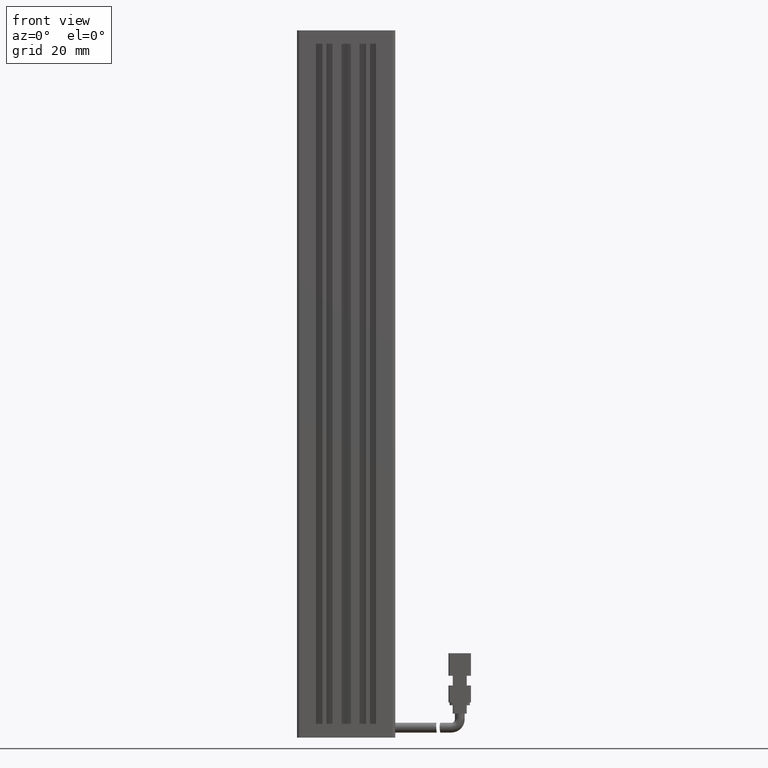
[diagram: clean part render]
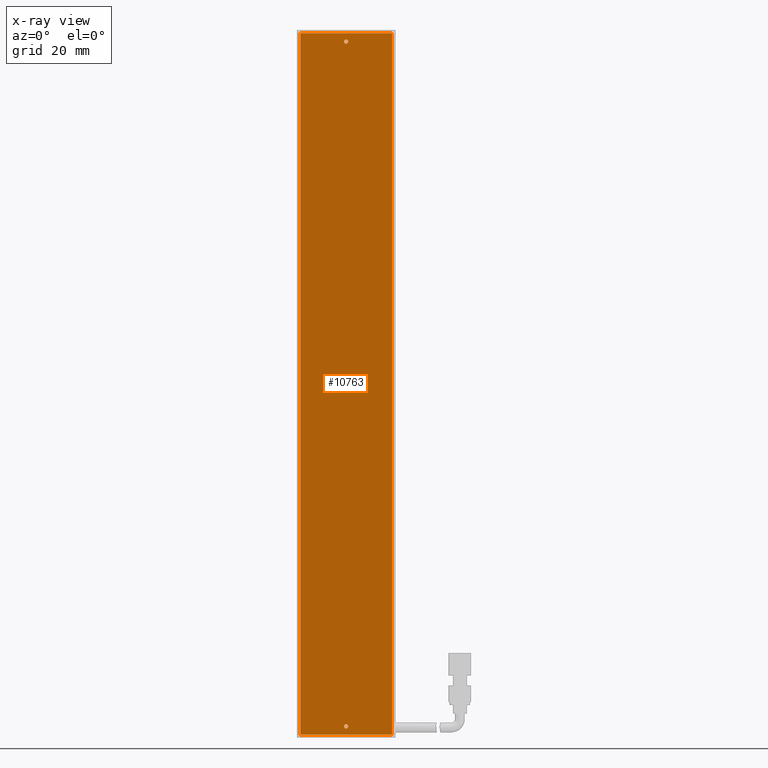
[diagram: x-ray — body ghosted, one internal face saturated and labeled with its STEP entity id]
A machine part, front view, then the same camera in x-ray: the body is ghosted and one INTERNAL B-rep face — a face not visible from any outside direction — is saturated and labeled: STEP entity #10763.
In plain terms, the highlighted planar face has unit normal (0, 1, 0).
Its self-contained STEP definition (entity closure, byte-faithful):
#1106 = DIRECTION ( 'NONE',  ( 1.387778780781445400E-016, -0.0000000000000000000, -1.000000000000000000 ) ) ;
#7111 = EDGE_LOOP ( 'NONE', ( #26235, #29407 ) ) ;
#7222 = CARTESIAN_POINT ( 'NONE',  ( 40.92537974683545300, 32.09073232304837800, -237.0000000000001100 ) ) ;
#7619 = DIRECTION ( 'NONE',  ( 1.000000000000000000, -1.639141018151397500E-031, 1.387778780781445400E-016 ) ) ;
#10186 = EDGE_CURVE ( 'NONE', #27209, #43473, #37249, .T. ) ;
#10421 = ORIENTED_EDGE ( 'NONE', *, *, #34554, .F. ) ;
#10754 = DIRECTION ( 'NONE',  ( -1.000000000000000000, 1.639141018151397500E-031, -1.387778780781445400E-016 ) ) ;
#10763 = ADVANCED_FACE ( 'NONE', ( #26465, #62680, #18211 ), #32570, .F. ) ;
#11289 = AXIS2_PLACEMENT_3D ( 'NONE', #14478, #13847, #56734 ) ;
#13837 = CARTESIAN_POINT ( 'NONE',  ( 40.17537974683545300, 32.09073232304837800, -237.0000000000001100 ) ) ;
#13847 = DIRECTION ( 'NONE',  ( -1.639141018151397500E-031, -1.000000000000000000, -2.274765123699003500E-047 ) ) ;
#14478 = CARTESIAN_POINT ( 'NONE',  ( 40.92537974683543200, 32.09073232304837800, 7.000000000000089700 ) ) ;
#15359 = VERTEX_POINT ( 'NONE', #35758 ) ;
#18211 = FACE_BOUND ( 'NONE', #22641, .T. ) ;
#20327 = DIRECTION ( 'NONE',  ( -1.000000000000000000, 0.0000000000000000000, 0.0000000000000000000 ) ) ;
#20707 = EDGE_CURVE ( 'NONE', #60005, #27209, #36972, .T. ) ;
#21515 = DIRECTION ( 'NONE',  ( -1.639141018151397500E-031, -1.000000000000000000, -2.274765123699003500E-047 ) ) ;
#22641 = EDGE_LOOP ( 'NONE', ( #10421, #25664 ) ) ;
#23763 = CARTESIAN_POINT ( 'NONE',  ( 40.92537974683545300, 32.09073232304837800, -237.0000000000001100 ) ) ;
#24478 = VERTEX_POINT ( 'NONE', #13837 ) ;
#25664 = ORIENTED_EDGE ( 'NONE', *, *, #61392, .F. ) ;
#26235 = ORIENTED_EDGE ( 'NONE', *, *, #31430, .F. ) ;
#26465 = FACE_OUTER_BOUND ( 'NONE', #43846, .T. ) ;
#27209 = VERTEX_POINT ( 'NONE', #56301 ) ;
#29407 = ORIENTED_EDGE ( 'NONE', *, *, #60509, .F. ) ;
#31430 = EDGE_CURVE ( 'NONE', #79203, #45280, #45077, .T. ) ;
#31565 = DIRECTION ( 'NONE',  ( -1.639141018151397500E-031, -1.000000000000000000, -2.274765123699003500E-047 ) ) ;
#32070 = CARTESIAN_POINT ( 'NONE',  ( 24.57537974683539900, 32.09073232304837800, 10.00000000000009200 ) ) ;
#32570 = PLANE ( 'NONE',  #88567 ) ;
#34554 = EDGE_CURVE ( 'NONE', #24478, #79615, #42591, .T. ) ;
#35147 = CARTESIAN_POINT ( 'NONE',  ( 24.57537974683542700, 32.09073232304837800, 10.00000000000009100 ) ) ;
#35758 = CARTESIAN_POINT ( 'NONE',  ( 24.57537974683543800, 32.09073232304837800, -240.0000000000001400 ) ) ;
#36972 = LINE ( 'NONE', #88869, #81373 ) ;
#37249 = LINE ( 'NONE', #90522, #52481 ) ;
#39507 = LINE ( 'NONE', #66818, #72175 ) ;
#41445 = AXIS2_PLACEMENT_3D ( 'NONE', #23763, #31565, #84150 ) ;
#41779 = AXIS2_PLACEMENT_3D ( 'NONE', #7222, #21515, #66898 ) ;
#42591 = CIRCLE ( 'NONE', #41779, 0.7500000000000006700 ) ;
#42893 = DIRECTION ( 'NONE',  ( -1.639141018151397500E-031, -1.000000000000000000, -2.274765123699003500E-047 ) ) ;
#43473 = VERTEX_POINT ( 'NONE', #56769 ) ;
#43846 = EDGE_LOOP ( 'NONE', ( #49942, #78709, #53032, #87106 ) ) ;
#44582 = EDGE_CURVE ( 'NONE', #43473, #15359, #39507, .T. ) ;
#45077 = CIRCLE ( 'NONE', #11289, 0.7500000000000006700 ) ;
#45280 = VERTEX_POINT ( 'NONE', #71541 ) ;
#48000 = CARTESIAN_POINT ( 'NONE',  ( 57.27537974683546200, 32.09073232304837800, 10.00000000000009800 ) ) ;
#49006 = VECTOR ( 'NONE', #54043, 1000.000000000000000 ) ;
#49942 = ORIENTED_EDGE ( 'NONE', *, *, #80329, .F. ) ;
#50419 = CIRCLE ( 'NONE', #66847, 0.7500000000000006700 ) ;
#52213 = CARTESIAN_POINT ( 'NONE',  ( 41.67537974683545300, 32.09073232304837800, -237.0000000000001100 ) ) ;
#52284 = CIRCLE ( 'NONE', #41445, 0.7500000000000006700 ) ;
#52481 = VECTOR ( 'NONE', #1106, 1000.000000000000000 ) ;
#53032 = ORIENTED_EDGE ( 'NONE', *, *, #10186, .F. ) ;
#54043 = DIRECTION ( 'NONE',  ( -1.387778780781445400E-016, 0.0000000000000000000, 1.000000000000000000 ) ) ;
#56301 = CARTESIAN_POINT ( 'NONE',  ( 57.27537974683546200, 32.09073232304837800, 10.00000000000009600 ) ) ;
#56734 = DIRECTION ( 'NONE',  ( -1.000000000000000000, 0.0000000000000000000, 0.0000000000000000000 ) ) ;
#56769 = CARTESIAN_POINT ( 'NONE',  ( 57.27537974683547600, 32.09073232304837800, -240.0000000000001400 ) ) ;
#60005 = VERTEX_POINT ( 'NONE', #35147 ) ;
#60509 = EDGE_CURVE ( 'NONE', #45280, #79203, #50419, .T. ) ;
#60602 = LINE ( 'NONE', #32070, #49006 ) ;
#60787 = CARTESIAN_POINT ( 'NONE',  ( 40.17537974683543200, 32.09073232304837800, 7.000000000000089700 ) ) ;
#61392 = EDGE_CURVE ( 'NONE', #79615, #24478, #52284, .T. ) ;
#62680 = FACE_BOUND ( 'NONE', #7111, .T. ) ;
#65429 = CARTESIAN_POINT ( 'NONE',  ( 40.92537974683543200, 32.09073232304837800, 7.000000000000089700 ) ) ;
#66818 = CARTESIAN_POINT ( 'NONE',  ( 57.27537974683549700, 32.09073232304837800, -240.0000000000001400 ) ) ;
#66847 = AXIS2_PLACEMENT_3D ( 'NONE', #65429, #42893, #20327 ) ;
#66898 = DIRECTION ( 'NONE',  ( -1.000000000000000000, 0.0000000000000000000, 0.0000000000000000000 ) ) ;
#71541 = CARTESIAN_POINT ( 'NONE',  ( 41.67537974683543200, 32.09073232304837800, 7.000000000000089700 ) ) ;
#72175 = VECTOR ( 'NONE', #83434, 1000.000000000000000 ) ;
#78709 = ORIENTED_EDGE ( 'NONE', *, *, #44582, .F. ) ;
#79203 = VERTEX_POINT ( 'NONE', #60787 ) ;
#79615 = VERTEX_POINT ( 'NONE', #52213 ) ;
#80329 = EDGE_CURVE ( 'NONE', #15359, #60005, #60602, .T. ) ;
#81373 = VECTOR ( 'NONE', #7619, 1000.000000000000000 ) ;
#83434 = DIRECTION ( 'NONE',  ( -1.000000000000000000, 1.639141018151397500E-031, -1.387778780781445400E-016 ) ) ;
#84150 = DIRECTION ( 'NONE',  ( -1.000000000000000000, 0.0000000000000000000, 0.0000000000000000000 ) ) ;
#87106 = ORIENTED_EDGE ( 'NONE', *, *, #20707, .F. ) ;
#88567 = AXIS2_PLACEMENT_3D ( 'NONE', #48000, #91698, #10754 ) ;
#88869 = CARTESIAN_POINT ( 'NONE',  ( 57.27537974683546200, 32.09073232304837800, 10.00000000000009800 ) ) ;
#90522 = CARTESIAN_POINT ( 'NONE',  ( 57.27537974683546200, 32.09073232304837800, 10.00000000000009800 ) ) ;
#91698 = DIRECTION ( 'NONE',  ( 1.639141018151397500E-031, 1.000000000000000000, 2.274765123699003500E-047 ) ) ;